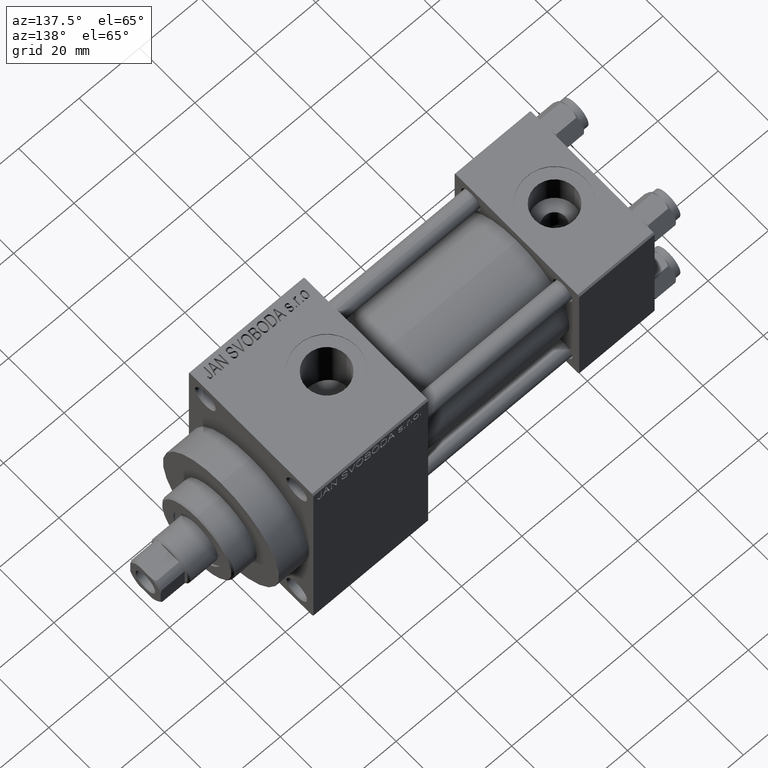
[diagram: clean part render]
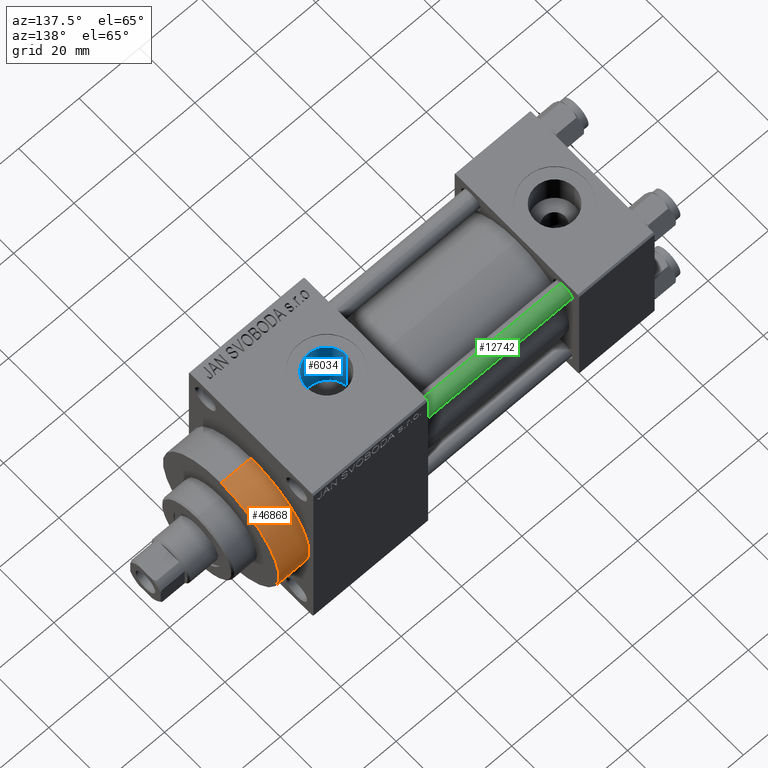
[diagram: same view with three faces highlighted in distinct colors, each labeled with its STEP entity id]
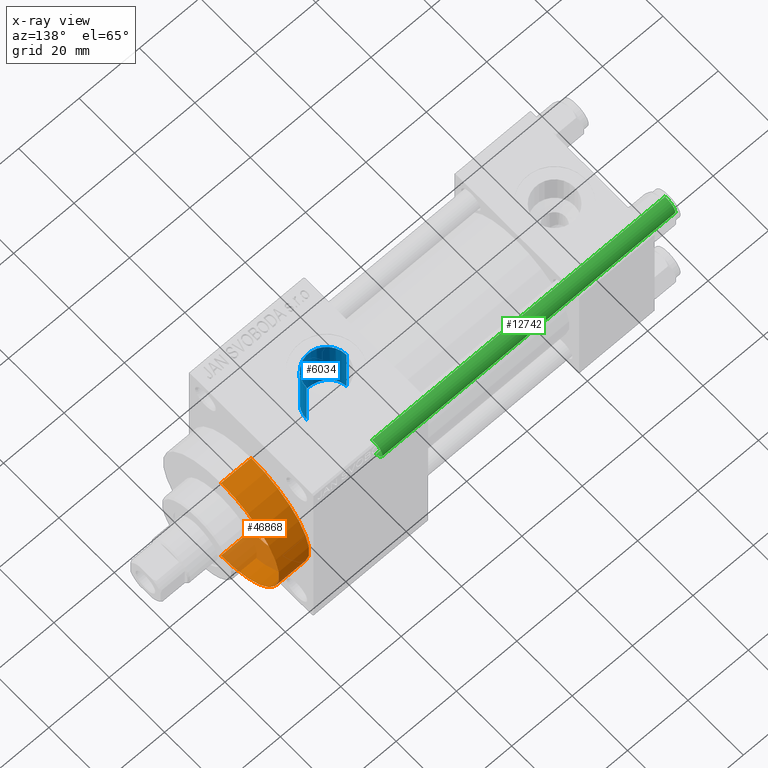
[diagram: x-ray of the same camera — body ghosted, the three highlighted faces saturated]
A machine part, auxiliary view with three faces highlighted in distinct colors.
The next image is the same camera in x-ray (body ghosted, the three faces saturated) — at least one of them is partly hidden behind the body in this view.
Their STEP definitions:

[orange] entity #46868 — the highlighted cylindrical surface (partial cylindrical patch) has radius 21 mm, axis along (-1, -0, -0).
#1249 = DIRECTION ( 'NONE',  ( -1.000000000000000000, -0.000000000000000000, -0.000000000000000000 ) ) ;
#3835 = EDGE_CURVE ( 'NONE', #13705, #25737, #40081, .T. ) ;
#4488 = CARTESIAN_POINT ( 'NONE',  ( 113.0000000000000142, 0.000000000000000000, 21.00000000000000000 ) ) ;
#4923 = DIRECTION ( 'NONE',  ( -1.000000000000000000, -0.000000000000000000, -0.000000000000000000 ) ) ;
#5283 = CARTESIAN_POINT ( 'NONE',  ( 123.0000000000000142, 0.000000000000000000, 0.000000000000000000 ) ) ;
#5754 = EDGE_CURVE ( 'NONE', #13705, #17650, #40444, .T. ) ;
#7582 = EDGE_CURVE ( 'NONE', #25737, #23244, #38132, .T. ) ;
#10874 = CIRCLE ( 'NONE', #21525, 21.00000000000000000 ) ;
#12304 = CARTESIAN_POINT ( 'NONE',  ( 113.0000000000000142, 2.571758278209441661E-15, -21.00000000000000000 ) ) ;
#12424 = EDGE_LOOP ( 'NONE', ( #32004, #38464, #43184, #21258 ) ) ;
#12600 = CARTESIAN_POINT ( 'NONE',  ( 123.0000000000000142, 0.000000000000000000, 21.00000000000000000 ) ) ;
#12714 = AXIS2_PLACEMENT_3D ( 'NONE', #5283, #1249, #40807 ) ;
#12866 = CARTESIAN_POINT ( 'NONE',  ( 113.0000000000000142, 0.000000000000000000, 0.000000000000000000 ) ) ;
#13705 = VERTEX_POINT ( 'NONE', #32886 ) ;
#14891 = EDGE_CURVE ( 'NONE', #17650, #23244, #10874, .T. ) ;
#16242 = CYLINDRICAL_SURFACE ( 'NONE', #12714, 21.00000000000000000 ) ;
#17650 = VERTEX_POINT ( 'NONE', #12304 ) ;
#19539 = DIRECTION ( 'NONE',  ( -1.000000000000000000, -0.000000000000000000, -0.000000000000000000 ) ) ;
#20464 = CARTESIAN_POINT ( 'NONE',  ( 123.0000000000000142, 0.000000000000000000, 21.00000000000000000 ) ) ;
#21258 = ORIENTED_EDGE ( 'NONE', *, *, #7582, .F. ) ;
#21525 = AXIS2_PLACEMENT_3D ( 'NONE', #12866, #34323, #42411 ) ;
#23244 = VERTEX_POINT ( 'NONE', #4488 ) ;
#23587 = VECTOR ( 'NONE', #4923, 1000.000000000000000 ) ;
#25737 = VERTEX_POINT ( 'NONE', #12600 ) ;
#29606 = VECTOR ( 'NONE', #19539, 1000.000000000000000 ) ;
#30188 = CARTESIAN_POINT ( 'NONE',  ( 123.0000000000000142, 2.571758278209441661E-15, -21.00000000000000000 ) ) ;
#32004 = ORIENTED_EDGE ( 'NONE', *, *, #3835, .F. ) ;
#32009 = DIRECTION ( 'NONE',  ( 0.000000000000000000, 0.000000000000000000, -1.000000000000000000 ) ) ;
#32886 = CARTESIAN_POINT ( 'NONE',  ( 123.0000000000000142, 2.571758278209441661E-15, -21.00000000000000000 ) ) ;
#34323 = DIRECTION ( 'NONE',  ( 1.000000000000000000, 0.000000000000000000, 0.000000000000000000 ) ) ;
#36312 = AXIS2_PLACEMENT_3D ( 'NONE', #46074, #46773, #32009 ) ;
#38132 = LINE ( 'NONE', #20464, #29606 ) ;
#38464 = ORIENTED_EDGE ( 'NONE', *, *, #5754, .T. ) ;
#40081 = CIRCLE ( 'NONE', #36312, 21.00000000000000000 ) ;
#40444 = LINE ( 'NONE', #30188, #23587 ) ;
#40807 = DIRECTION ( 'NONE',  ( 0.000000000000000000, 0.000000000000000000, 1.000000000000000000 ) ) ;
#41517 = FACE_OUTER_BOUND ( 'NONE', #12424, .T. ) ;
#42411 = DIRECTION ( 'NONE',  ( 0.000000000000000000, 0.000000000000000000, -1.000000000000000000 ) ) ;
#43184 = ORIENTED_EDGE ( 'NONE', *, *, #14891, .T. ) ;
#46074 = CARTESIAN_POINT ( 'NONE',  ( 123.0000000000000142, 0.000000000000000000, 0.000000000000000000 ) ) ;
#46773 = DIRECTION ( 'NONE',  ( 1.000000000000000000, 0.000000000000000000, 0.000000000000000000 ) ) ;
#46868 = ADVANCED_FACE ( 'NONE', ( #41517 ), #16242, .T. ) ;

[blue] entity #6034 — the highlighted cylindrical surface (edge-blend (fillet) strip) has radius 6.58 mm, axis along (0, 0, -1).
#313 = CARTESIAN_POINT ( 'NONE',  ( 90.13357907170176020, -6.239341168555348816, 15.27587318676771488 ) ) ;
#559 = CARTESIAN_POINT ( 'NONE',  ( 87.56714338634627381, -6.580050913035224269, 15.13119063342181470 ) ) ;
#748 = ORIENTED_EDGE ( 'NONE', *, *, #40936, .T. ) ;
#1259 = EDGE_CURVE ( 'NONE', #32584, #33615, #7125, .T. ) ;
#1276 = CARTESIAN_POINT ( 'NONE',  ( 81.50679825809073975, -1.086839974714738810, 16.46553180118348791 ) ) ;
#2394 = ORIENTED_EDGE ( 'NONE', *, *, #17647, .F. ) ;
#3159 = ORIENTED_EDGE ( 'NONE', *, *, #23667, .T. ) ;
#3422 = CARTESIAN_POINT ( 'NONE',  ( 94.49362664085398933, -1.084660904079432386, 16.46569860783879946 ) ) ;
#3912 = DIRECTION ( 'NONE',  ( 0.000000000000000000, 0.000000000000000000, -1.000000000000000000 ) ) ;
#4126 = CARTESIAN_POINT ( 'NONE',  ( 92.01721064807190942, -5.228695620197086669, 15.65163649699630177 ) ) ;
#4445 = DIRECTION ( 'NONE',  ( 0.000000000000000000, 0.000000000000000000, -1.000000000000000000 ) ) ;
#4868 = B_SPLINE_CURVE_WITH_KNOTS ( 'NONE', 3,
 ( #10598, #14622, #36096, #36330, #3422, #14395, #28933, #25113, #44170, #7464, #21988, #18197, #11296, #32737, #4126, #18656, #36564, #29161, #7701, #313, #43473, #25571, #10824, #559, #7939, #17735, #29631, #32970, #25338, #40369, #39899, #14846, #39671, #25812, #46810, #26040, #22221, #33205, #45351, #19135, #22696, #1276, #33923, #30348, #37026, #37977 ),
 .UNSPECIFIED., .F., .F.,
 ( 4, 2, 2, 2, 2, 2, 2, 2, 2, 2, 2, 2, 2, 2, 2, 2, 2, 2, 2, 2, 2, 2, 4 ),
 ( 0.02079064982460944802, 0.02143993797161907258, 0.02208922611862870061, 0.02338780241264794973, 0.02403709055965757777, 0.02468637870666720233, 0.02598495500068645492, 0.02728353129470570751, 0.02793281944171533554, 0.02858210758872496010, 0.02988068388274421616, 0.03117926017676346875, 0.03247783647078272135, 0.03377641276480197741, 0.03442570091181162278, 0.03507498905882126816, 0.03637356535284055892, 0.03702285349985022511, 0.03767214164685988437, 0.03897071794087918206, 0.04026929423489847976, 0.04091858238190813207, 0.04156787052891778439 ),
 .UNSPECIFIED. ) ;
#5468 = ORIENTED_EDGE ( 'NONE', *, *, #1259, .F. ) ;
#6034 = ADVANCED_FACE ( 'NONE', ( #26065 ), #7962, .F. ) ;
#6304 = CARTESIAN_POINT ( 'NONE',  ( 94.58000000000001251, 8.058175938389587461E-16, 34.80000000000000426 ) ) ;
#7125 = CIRCLE ( 'NONE', #41372, 6.580000000000002736 ) ;
#7464 = CARTESIAN_POINT ( 'NONE',  ( 93.69161966785188156, -3.308819030646350079, 16.16598397392302999 ) ) ;
#7701 = CARTESIAN_POINT ( 'NONE',  ( 90.72934701474920871, -5.991105852953032773, 15.37415267966568422 ) ) ;
#7939 = CARTESIAN_POINT ( 'NONE',  ( 87.13614203133828084, -6.537659111857249350, 15.14984163799154260 ) ) ;
#7962 = CYLINDRICAL_SURFACE ( 'NONE', #18285, 6.580000000000002736 ) ;
#10598 = CARTESIAN_POINT ( 'NONE',  ( 94.58000000000001251, 2.020737417192725116E-15, 16.50000000000000000 ) ) ;
#10655 = DIRECTION ( 'NONE',  ( -0.000000000000000000, -0.000000000000000000, -1.000000000000000000 ) ) ;
#10824 = CARTESIAN_POINT ( 'NONE',  ( 88.43440312488526445, -6.579948996094833191, 15.13123495329705115 ) ) ;
#10880 = VERTEX_POINT ( 'NONE', #44613 ) ;
#11296 = CARTESIAN_POINT ( 'NONE',  ( 92.95317481061357512, -4.352783460729912512, 15.91864429096167477 ) ) ;
#13517 = CARTESIAN_POINT ( 'NONE',  ( 88.00000000000001421, 0.000000000000000000, 34.80000000000000426 ) ) ;
#13611 = EDGE_LOOP ( 'NONE', ( #5468, #748, #3159, #2394 ) ) ;
#14395 = CARTESIAN_POINT ( 'NONE',  ( 94.36497022801027867, -1.724140048583717943, 16.41524354912109018 ) ) ;
#14622 = CARTESIAN_POINT ( 'NONE',  ( 94.58000000000001251, -0.2163951708881202696, 16.50000000000000355 ) ) ;
#14846 = CARTESIAN_POINT ( 'NONE',  ( 83.97930912326808084, -5.226198047410674619, 15.65249317291698006 ) ) ;
#15342 = DIRECTION ( 'NONE',  ( -1.000000000000000000, 0.000000000000000000, 0.000000000000000000 ) ) ;
#16968 = CARTESIAN_POINT ( 'NONE',  ( 94.58000000000001251, 8.058175938389587461E-16, 57.80000000000000426 ) ) ;
#17647 = EDGE_CURVE ( 'NONE', #33615, #37358, #22536, .T. ) ;
#17735 = CARTESIAN_POINT ( 'NONE',  ( 86.27945687379795459, -6.366079531685832293, 15.22273693247449877 ) ) ;
#18197 = CARTESIAN_POINT ( 'NONE',  ( 93.22447434070413408, -4.022809406120919640, 16.00620960271934834 ) ) ;
#18200 = CARTESIAN_POINT ( 'NONE',  ( 81.42000000000000171, 0.000000000000000000, 34.80000000000000426 ) ) ;
#18285 = AXIS2_PLACEMENT_3D ( 'NONE', #33230, #3912, #15342 ) ;
#18656 = CARTESIAN_POINT ( 'NONE',  ( 91.48737523177577202, -5.583889666953453457, 15.52694180828872206 ) ) ;
#19135 = CARTESIAN_POINT ( 'NONE',  ( 81.76097828797998091, -2.135290433773736396, 16.36627272964048885 ) ) ;
#21988 = CARTESIAN_POINT ( 'NONE',  ( 93.58102054294072047, -3.491996794519804492, 16.12727173852116280 ) ) ;
#22221 = CARTESIAN_POINT ( 'NONE',  ( 82.65431481144790382, -3.842567838182976647, 16.04735236386413533 ) ) ;
#22536 = LINE ( 'NONE', #37108, #45841 ) ;
#22696 = CARTESIAN_POINT ( 'NONE',  ( 81.63441934443268622, -1.720971494404684776, 16.41548328929544809 ) ) ;
#23667 = EDGE_CURVE ( 'NONE', #10880, #37358, #4868, .T. ) ;
#25113 = CARTESIAN_POINT ( 'NONE',  ( 93.98949450365964253, -2.732918497916949185, 16.27334343707126862 ) ) ;
#25338 = CARTESIAN_POINT ( 'NONE',  ( 85.07654344552418024, -5.898830240844358919, 15.40992051837809207 ) ) ;
#25571 = CARTESIAN_POINT ( 'NONE',  ( 88.87554792479386379, -6.535808320821816508, 15.15063751048962004 ) ) ;
#25812 = CARTESIAN_POINT ( 'NONE',  ( 83.19831766675285678, -4.503976026009450351, 15.87415900356346121 ) ) ;
#26040 = CARTESIAN_POINT ( 'NONE',  ( 82.78143726712163186, -4.013576357769045089, 16.00532411629096075 ) ) ;
#26065 = FACE_OUTER_BOUND ( 'NONE', #13611, .T. ) ;
#27855 = VECTOR ( 'NONE', #38678, 1000.000000000000000 ) ;
#28523 = DIRECTION ( 'NONE',  ( 1.000000000000000000, 0.000000000000000000, 0.000000000000000000 ) ) ;
#28933 = CARTESIAN_POINT ( 'NONE',  ( 94.23858731382411236, -2.135972853361014501, 16.36611806502121880 ) ) ;
#29161 = CARTESIAN_POINT ( 'NONE',  ( 90.92571139866308272, -5.897698776662511300, 15.41035272458331207 ) ) ;
#29631 = CARTESIAN_POINT ( 'NONE',  ( 85.86462824079153222, -6.238650567619522747, 15.27615042340678464 ) ) ;
#30348 = CARTESIAN_POINT ( 'NONE',  ( 81.43111078558246163, -0.4398369301202784687, 16.49556026761938909 ) ) ;
#31748 = LINE ( 'NONE', #16968, #27855 ) ;
#32463 = CARTESIAN_POINT ( 'NONE',  ( 81.42000000000000171, 3.122157712485941957E-16, 16.50000000000000000 ) ) ;
#32584 = VERTEX_POINT ( 'NONE', #6304 ) ;
#32737 = CARTESIAN_POINT ( 'NONE',  ( 92.34567354822576135, -4.959413873912082771, 15.74020882788467190 ) ) ;
#32970 = CARTESIAN_POINT ( 'NONE',  ( 85.27044409750293141, -5.990990564077421254, 15.37419640914568397 ) ) ;
#33205 = CARTESIAN_POINT ( 'NONE',  ( 82.29867200181003284, -3.312456786379075702, 16.16814806842722874 ) ) ;
#33230 = CARTESIAN_POINT ( 'NONE',  ( 88.00000000000001421, 0.000000000000000000, 57.80000000000000426 ) ) ;
#33615 = VERTEX_POINT ( 'NONE', #18200 ) ;
#33923 = CARTESIAN_POINT ( 'NONE',  ( 81.47452924282096376, -0.8729223525547649132, 16.47831822833177995 ) ) ;
#36096 = CARTESIAN_POINT ( 'NONE',  ( 94.56935192308993976, -0.4330170479737218692, 16.49574474005546776 ) ) ;
#36330 = CARTESIAN_POINT ( 'NONE',  ( 94.52630673133054984, -0.8667230825533497329, 16.47864950143284091 ) ) ;
#36564 = CARTESIAN_POINT ( 'NONE',  ( 91.30452418760046385, -5.694098518824309174, 15.48673832717016907 ) ) ;
#37026 = CARTESIAN_POINT ( 'NONE',  ( 81.41999999999997328, -0.2197034552520739370, 16.50000000000000000 ) ) ;
#37108 = CARTESIAN_POINT ( 'NONE',  ( 81.42000000000000171, 0.000000000000000000, 57.80000000000000426 ) ) ;
#37358 = VERTEX_POINT ( 'NONE', #32463 ) ;
#37977 = CARTESIAN_POINT ( 'NONE',  ( 81.42000000000000171, 3.122157712485941957E-16, 16.50000000000000000 ) ) ;
#38678 = DIRECTION ( 'NONE',  ( 0.000000000000000000, 0.000000000000000000, -1.000000000000000000 ) ) ;
#39671 = CARTESIAN_POINT ( 'NONE',  ( 83.65127658686681400, -4.956532837095939392, 15.74108251321745477 ) ) ;
#39899 = CARTESIAN_POINT ( 'NONE',  ( 84.51175122427456188, -5.583385690412080216, 15.52712872271769129 ) ) ;
#40369 = CARTESIAN_POINT ( 'NONE',  ( 84.69701566416132721, -5.695005786951583993, 15.48640557649249594 ) ) ;
#40936 = EDGE_CURVE ( 'NONE', #32584, #10880, #31748, .T. ) ;
#41372 = AXIS2_PLACEMENT_3D ( 'NONE', #13517, #10655, #28523 ) ;
#43473 = CARTESIAN_POINT ( 'NONE',  ( 89.72332774763206942, -6.365022863224917060, 15.22317612495509742 ) ) ;
#44170 = CARTESIAN_POINT ( 'NONE',  ( 93.89587711108170254, -2.929411359312366514, 16.23902307131298528 ) ) ;
#44613 = CARTESIAN_POINT ( 'NONE',  ( 94.58000000000001251, 2.020737417192725116E-15, 16.50000000000000000 ) ) ;
#45351 = CARTESIAN_POINT ( 'NONE',  ( 82.09558751161353030, -2.936455401774155316, 16.24166179831764367 ) ) ;
#45841 = VECTOR ( 'NONE', #4445, 1000.000000000000000 ) ;
#46810 = CARTESIAN_POINT ( 'NONE',  ( 83.05324311122731729, -4.344167176802685049, 15.91877529168490568 ) ) ;

[green] entity #12742 — the highlighted cylindrical surface (edge-blend (fillet) strip) has radius 3 mm, axis along (-1, -0, 0).
#33 = EDGE_LOOP ( 'NONE', ( #23833, #20191, #8630, #34295 ) ) ;
#752 = LINE ( 'NONE', #20198, #26048 ) ;
#2156 = CARTESIAN_POINT ( 'NONE',  ( 3.000000000000000444, 3.673940397442060361E-16, 0.5000000000000281997 ) ) ;
#2458 = CARTESIAN_POINT ( 'NONE',  ( 0.000000000000000000, 0.000000000000000000, 97.50000000000001421 ) ) ;
#3088 = CARTESIAN_POINT ( 'NONE',  ( 3.000000000000000444, 3.673940397442060361E-16, 97.50000000000001421 ) ) ;
#3274 = DIRECTION ( 'NONE',  ( -0.000000000000000000, -0.000000000000000000, -1.000000000000000000 ) ) ;
#3714 = CARTESIAN_POINT ( 'NONE',  ( -3.000000000000000444, 0.000000000000000000, 0.5000000000000281997 ) ) ;
#4648 = DIRECTION ( 'NONE',  ( -1.000000000000000000, 0.000000000000000000, 0.000000000000000000 ) ) ;
#5788 = DIRECTION ( 'NONE',  ( 0.000000000000000000, 0.000000000000000000, -1.000000000000000000 ) ) ;
#7305 = LINE ( 'NONE', #7781, #11336 ) ;
#7781 = CARTESIAN_POINT ( 'NONE',  ( 3.000000000000000444, 3.673940397442060361E-16, 98.00000000000000000 ) ) ;
#7981 = DIRECTION ( 'NONE',  ( -0.000000000000000000, -0.000000000000000000, -1.000000000000000000 ) ) ;
#8467 = CARTESIAN_POINT ( 'NONE',  ( 0.000000000000000000, 0.000000000000000000, 98.00000000000000000 ) ) ;
#8630 = ORIENTED_EDGE ( 'NONE', *, *, #17196, .T. ) ;
#9376 = CARTESIAN_POINT ( 'NONE',  ( 0.000000000000000000, 0.000000000000000000, 0.5000000000000281997 ) ) ;
#11336 = VECTOR ( 'NONE', #3274, 1000.000000000000000 ) ;
#12742 = ADVANCED_FACE ( 'NONE', ( #44443 ), #26572, .T. ) ;
#13651 = DIRECTION ( 'NONE',  ( -0.000000000000000000, -0.000000000000000000, 1.000000000000000000 ) ) ;
#16915 = CIRCLE ( 'NONE', #19965, 3.000000000000000444 ) ;
#17196 = EDGE_CURVE ( 'NONE', #36029, #34687, #16915, .T. ) ;
#17295 = EDGE_CURVE ( 'NONE', #30791, #34687, #752, .T. ) ;
#19965 = AXIS2_PLACEMENT_3D ( 'NONE', #9376, #13651, #23887 ) ;
#20191 = ORIENTED_EDGE ( 'NONE', *, *, #38072, .T. ) ;
#20198 = CARTESIAN_POINT ( 'NONE',  ( -3.000000000000000444, 0.000000000000000000, 98.00000000000000000 ) ) ;
#23833 = ORIENTED_EDGE ( 'NONE', *, *, #36561, .T. ) ;
#23887 = DIRECTION ( 'NONE',  ( 1.000000000000000000, 0.000000000000000000, 0.000000000000000000 ) ) ;
#26048 = VECTOR ( 'NONE', #45482, 1000.000000000000000 ) ;
#26572 = CYLINDRICAL_SURFACE ( 'NONE', #45842, 3.000000000000000444 ) ;
#30791 = VERTEX_POINT ( 'NONE', #31521 ) ;
#31149 = VERTEX_POINT ( 'NONE', #3088 ) ;
#31521 = CARTESIAN_POINT ( 'NONE',  ( -3.000000000000000444, 0.000000000000000000, 97.50000000000001421 ) ) ;
#32621 = CIRCLE ( 'NONE', #42538, 3.000000000000000444 ) ;
#34295 = ORIENTED_EDGE ( 'NONE', *, *, #17295, .F. ) ;
#34687 = VERTEX_POINT ( 'NONE', #3714 ) ;
#36029 = VERTEX_POINT ( 'NONE', #2156 ) ;
#36561 = EDGE_CURVE ( 'NONE', #30791, #31149, #32621, .T. ) ;
#38072 = EDGE_CURVE ( 'NONE', #31149, #36029, #7305, .T. ) ;
#41795 = DIRECTION ( 'NONE',  ( 1.000000000000000000, 0.000000000000000000, 0.000000000000000000 ) ) ;
#42538 = AXIS2_PLACEMENT_3D ( 'NONE', #2458, #5788, #41795 ) ;
#44443 = FACE_OUTER_BOUND ( 'NONE', #33, .T. ) ;
#45482 = DIRECTION ( 'NONE',  ( -0.000000000000000000, -0.000000000000000000, -1.000000000000000000 ) ) ;
#45842 = AXIS2_PLACEMENT_3D ( 'NONE', #8467, #7981, #4648 ) ;